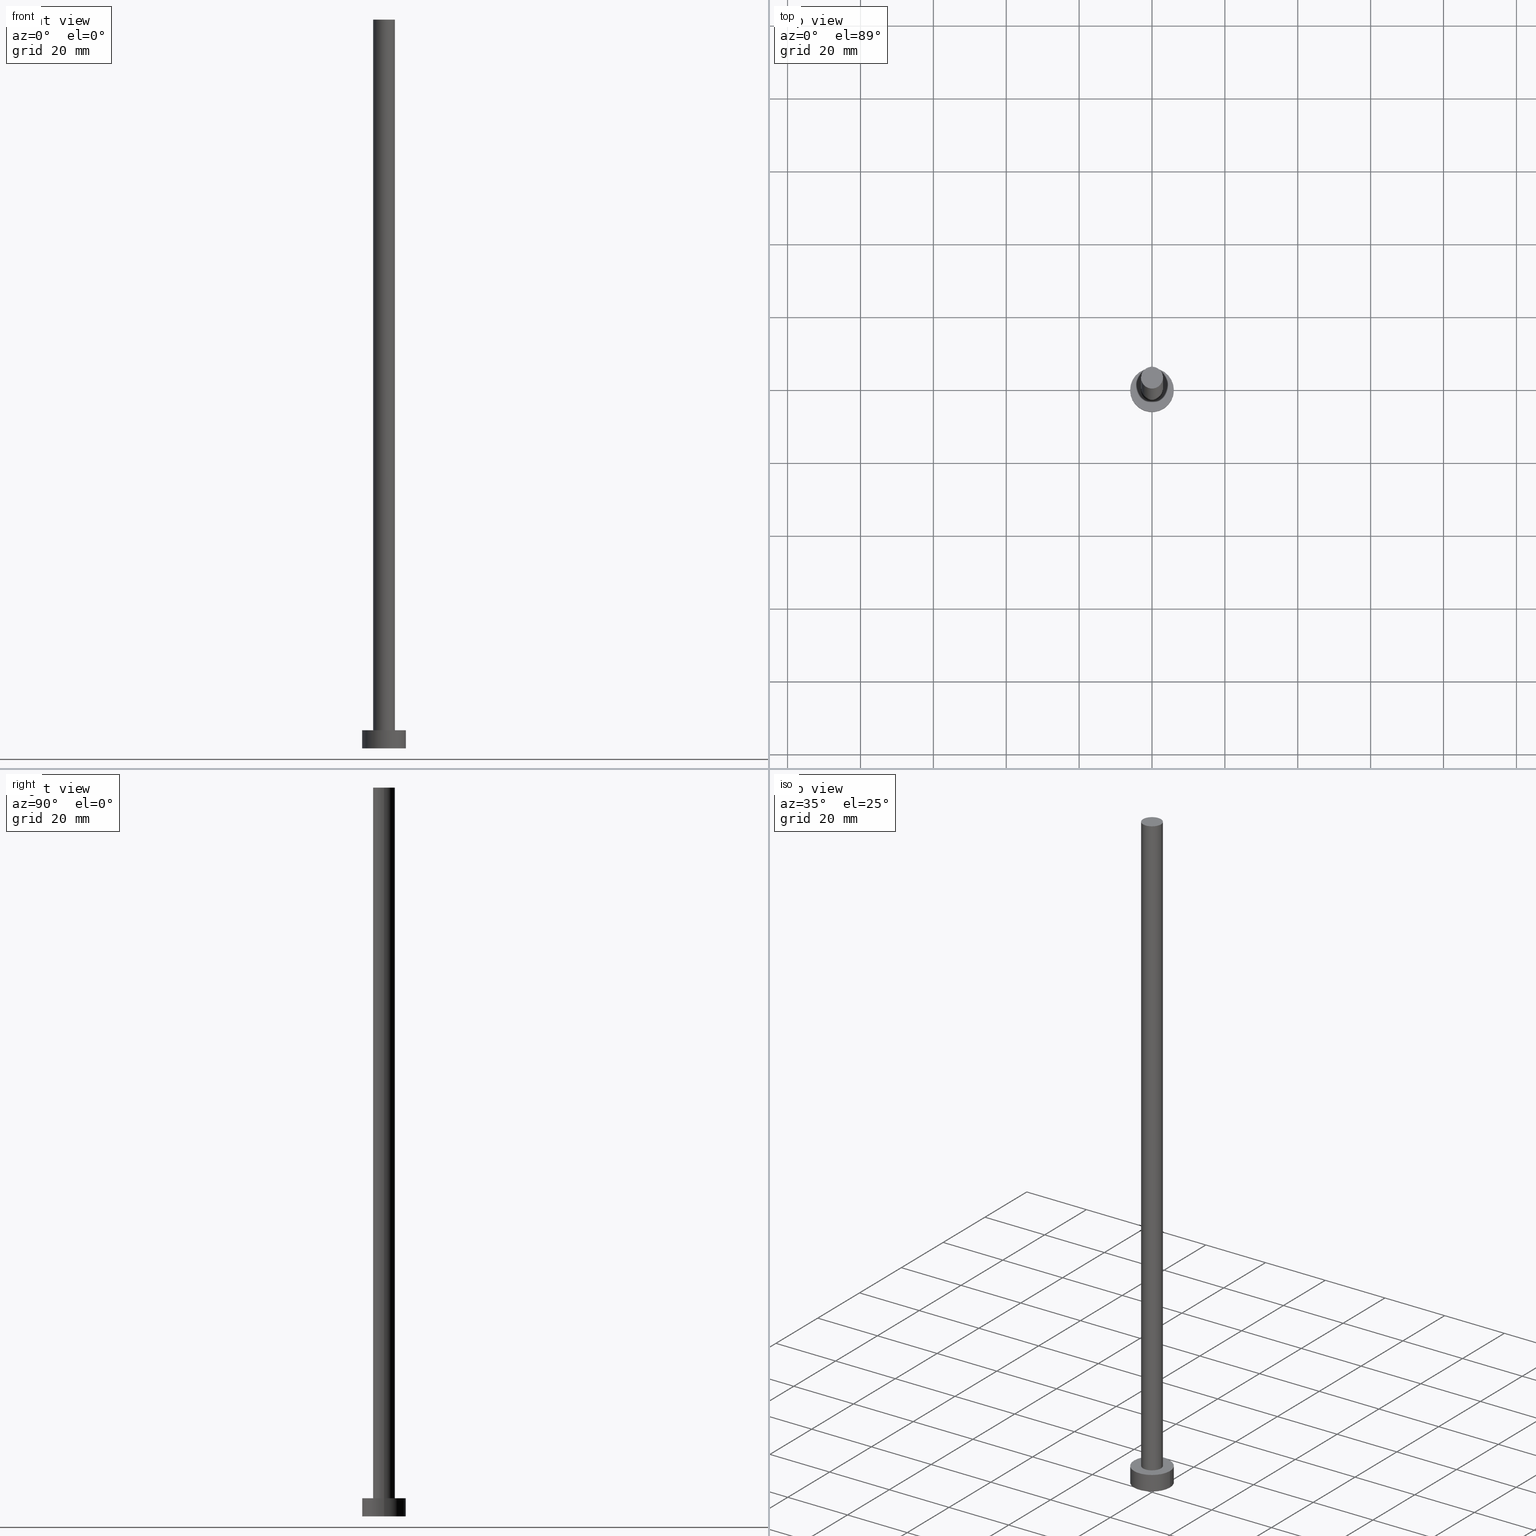
[diagram: canonical four-view strip — front | top / right | iso, engineering-drawing reading convention]
A machine part, canonical four-view strip (front | top / right | iso — engineering-drawing reading convention). The complete STEP part file that produces these views, byte-faithful:
ISO-10303-21;
HEADER;
FILE_DESCRIPTION (( 'STEP AP203' ),
    '1' );
FILE_NAME ('204b.STEP',
    '2023-02-13T14:07:28',
    ( '' ),
    ( '' ),
    'SwSTEP 2.0',
    'SolidWorks 2019',
    '' );
FILE_SCHEMA (( 'CONFIG_CONTROL_DESIGN' ));
ENDSEC;

DATA;
#1 = ORIENTED_EDGE ( 'NONE', *, *, #153, .T. ) ;
#2 = DIRECTION ( 'NONE',  ( 0.000000000000000000, 0.000000000000000000, 1.000000000000000000 ) ) ;
#3 = CIRCLE ( 'NONE', #38, 3.000000000000000444 ) ;
#4 = ORIENTED_EDGE ( 'NONE', *, *, #50, .T. ) ;
#5 = VERTEX_POINT ( 'NONE', #62 ) ;
#6 = PRODUCT_DEFINITION_SHAPE ( 'NONE', 'NONE',  #16 ) ;
#7 = ADVANCED_FACE ( 'NONE', ( #160, #67 ), #156, .T. ) ;
#8 = DIRECTION ( 'NONE',  ( -0.000000000000000000, -0.000000000000000000, -1.000000000000000000 ) ) ;
#9 = PERSON_AND_ORGANIZATION ( #74, #227 ) ;
#10 = PLANE ( 'NONE',  #178 ) ;
#11 = COORDINATED_UNIVERSAL_TIME_OFFSET ( 1, 0, .AHEAD. ) ;
#12 = EDGE_CURVE ( 'NONE', #240, #236, #63, .T. ) ;
#13 = DIRECTION ( 'NONE',  ( -0.000000000000000000, -0.000000000000000000, -1.000000000000000000 ) ) ;
#14 = DATE_AND_TIME ( #190, #109 ) ;
#15 = CARTESIAN_POINT ( 'NONE',  ( 6.000000000000000888, 7.347880794884120722E-16, 5.000000000000000000 ) ) ;
#16 = PRODUCT_DEFINITION ( 'NEZN�M�', '', #198, #174 ) ;
#17 = CALENDAR_DATE ( 2023, 13, 2 ) ;
#18 = CIRCLE ( 'NONE', #182, 3.000000000000000444 ) ;
#19 = CARTESIAN_POINT ( 'NONE',  ( -6.000000000000000888, 0.000000000000000000, 5.000000000000000000 ) ) ;
#20 = LOCAL_TIME ( 15, 7, 28.00000000000000000, #76 ) ;
#21 = CALENDAR_DATE ( 2023, 13, 2 ) ;
#22 = ADVANCED_FACE ( 'NONE', ( #123 ), #23, .T. ) ;
#23 = CYLINDRICAL_SURFACE ( 'NONE', #82, 6.000000000000000888 ) ;
#24 = EDGE_LOOP ( 'NONE', ( #241, #88 ) ) ;
#25 = ORIENTED_EDGE ( 'NONE', *, *, #195, .T. ) ;
#26 = DIRECTION ( 'NONE',  ( 1.000000000000000000, 0.000000000000000000, 0.000000000000000000 ) ) ;
#27 = CIRCLE ( 'NONE', #193, 6.000000000000000888 ) ;
#28 = FACE_OUTER_BOUND ( 'NONE', #45, .T. ) ;
#29 = AXIS2_PLACEMENT_3D ( 'NONE', #170, #116, #172 ) ;
#30 = CC_DESIGN_SECURITY_CLASSIFICATION ( #181, ( #198 ) ) ;
#31 = PERSON_AND_ORGANIZATION_ROLE ( 'design_supplier' ) ;
#32 = DIRECTION ( 'NONE',  ( 0.000000000000000000, 0.000000000000000000, 1.000000000000000000 ) ) ;
#33 = DIRECTION ( 'NONE',  ( -0.000000000000000000, -0.000000000000000000, -1.000000000000000000 ) ) ;
#34 = CIRCLE ( 'NONE', #53, 3.000000000000000444 ) ;
#35 = PERSON_AND_ORGANIZATION ( #74, #227 ) ;
#36 = PERSON_AND_ORGANIZATION_ROLE ( 'creator' ) ;
#37 = DIRECTION ( 'NONE',  ( 1.000000000000000000, 0.000000000000000000, 0.000000000000000000 ) ) ;
#38 = AXIS2_PLACEMENT_3D ( 'NONE', #187, #131, #205 ) ;
#39 = AXIS2_PLACEMENT_3D ( 'NONE', #142, #127, #202 ) ;
#40 = APPROVAL_PERSON_ORGANIZATION ( #186, #145, #147 ) ;
#41 = EDGE_CURVE ( 'NONE', #203, #177, #34, .T. ) ;
#42 = EDGE_LOOP ( 'NONE', ( #234, #216 ) ) ;
#43 = VECTOR ( 'NONE', #194, 1000.000000000000000 ) ;
#44 = APPROVAL_ROLE ( '' ) ;
#45 = EDGE_LOOP ( 'NONE', ( #139, #220, #105, #87 ) ) ;
#46 = PRODUCT_RELATED_PRODUCT_CATEGORY ( 'detail', '', ( #49 ) ) ;
#47 = AXIS2_PLACEMENT_3D ( 'NONE', #175, #89, #26 ) ;
#48 = ORIENTED_EDGE ( 'NONE', *, *, #155, .F. ) ;
#49 = PRODUCT ( '204b', '204b', '', ( #226 ) ) ;
#50 = EDGE_CURVE ( 'NONE', #154, #5, #27, .T. ) ;
#51 = DIRECTION ( 'NONE',  ( 1.000000000000000000, 0.000000000000000000, -0.000000000000000000 ) ) ;
#52 = EDGE_CURVE ( 'NONE', #161, #200, #90, .T. ) ;
#53 = AXIS2_PLACEMENT_3D ( 'NONE', #112, #130, #245 ) ;
#54 = SECURITY_CLASSIFICATION_LEVEL ( 'unclassified' ) ;
#55 = CYLINDRICAL_SURFACE ( 'NONE', #222, 3.000000000000000444 ) ;
#56 = ADVANCED_FACE ( 'NONE', ( #69 ), #55, .T. ) ;
#57 = VECTOR ( 'NONE', #137, 1000.000000000000000 ) ;
#58 = APPROVAL_DATE_TIME ( #212, #145 ) ;
#59 = CARTESIAN_POINT ( 'NONE',  ( -3.000000000000000444, 0.000000000000000000, 200.0000000000000000 ) ) ;
#60 = CC_DESIGN_PERSON_AND_ORGANIZATION_ASSIGNMENT ( #243, #36, ( #198 ) ) ;
#61 = ADVANCED_FACE ( 'NONE', ( #221 ), #165, .T. ) ;
#62 = CARTESIAN_POINT ( 'NONE',  ( -6.000000000000000888, 0.000000000000000000, 0.000000000000000000 ) ) ;
#63 = CIRCLE ( 'NONE', #47, 6.000000000000000888 ) ;
#64 = ORIENTED_EDGE ( 'NONE', *, *, #250, .T. ) ;
#65 = EDGE_LOOP ( 'NONE', ( #201, #85, #4, #48 ) ) ;
#66 = APPLICATION_CONTEXT ( 'configuration controlled 3d designs of mechanical parts and assemblies' ) ;
#67 = FACE_OUTER_BOUND ( 'NONE', #83, .T. ) ;
#68 = ORIENTED_EDGE ( 'NONE', *, *, #12, .T. ) ;
#69 = FACE_OUTER_BOUND ( 'NONE', #143, .T. ) ;
#70 = CC_DESIGN_PERSON_AND_ORGANIZATION_ASSIGNMENT ( #35, #72, ( #16 ) ) ;
#71 = DIRECTION ( 'NONE',  ( 1.000000000000000000, 0.000000000000000000, 0.000000000000000000 ) ) ;
#72 = PERSON_AND_ORGANIZATION_ROLE ( 'creator' ) ;
#73 = CARTESIAN_POINT ( 'NONE',  ( 0.000000000000000000, 0.000000000000000000, 5.000000000000000000 ) ) ;
#74 = PERSON ( 'NEUR�EN�', 'NEUR�EN�', 'NEUR�EN�', ('NEUR�EN�'), ('NEUR�EN�'), ('NEUR�EN�') ) ;
#75 = CARTESIAN_POINT ( 'NONE',  ( 0.000000000000000000, 0.000000000000000000, 0.000000000000000000 ) ) ;
#76 = COORDINATED_UNIVERSAL_TIME_OFFSET ( 1, 0, .AHEAD. ) ;
#77 = DIRECTION ( 'NONE',  ( 0.000000000000000000, 0.000000000000000000, 1.000000000000000000 ) ) ;
#78 = LINE ( 'NONE', #134, #197 ) ;
#79 = APPROVAL_PERSON_ORGANIZATION ( #9, #120, #93 ) ;
#80 = COORDINATED_UNIVERSAL_TIME_OFFSET ( 1, 0, .AHEAD. ) ;
#81 = CARTESIAN_POINT ( 'NONE',  ( -3.000000000000000444, 0.000000000000000000, 5.000000000000000000 ) ) ;
#82 = AXIS2_PLACEMENT_3D ( 'NONE', #199, #102, #108 ) ;
#83 = EDGE_LOOP ( 'NONE', ( #68, #1 ) ) ;
#84 =( NAMED_UNIT ( * ) SI_UNIT ( $, .STERADIAN. ) SOLID_ANGLE_UNIT ( ) );
#85 = ORIENTED_EDGE ( 'NONE', *, *, #224, .T. ) ;
#86 = AXIS2_PLACEMENT_3D ( 'NONE', #167, #206, #71 ) ;
#87 = ORIENTED_EDGE ( 'NONE', *, *, #250, .F. ) ;
#88 = ORIENTED_EDGE ( 'NONE', *, *, #50, .F. ) ;
#89 = DIRECTION ( 'NONE',  ( 0.000000000000000000, 0.000000000000000000, 1.000000000000000000 ) ) ;
#90 = CIRCLE ( 'NONE', #86, 3.000000000000000444 ) ;
#91 = EDGE_CURVE ( 'NONE', #177, #203, #3, .T. ) ;
#92 = CIRCLE ( 'NONE', #29, 6.000000000000000888 ) ;
#93 = APPROVAL_ROLE ( '' ) ;
#94 = APPROVAL ( #100, 'NEUR�EN�' ) ;
#95 = CARTESIAN_POINT ( 'NONE',  ( 0.000000000000000000, 0.000000000000000000, 200.0000000000000000 ) ) ;
#96 = DATE_AND_TIME ( #171, #20 ) ;
#97 = PLANE ( 'NONE',  #148 ) ;
#98 = DATE_TIME_ROLE ( 'classification_date' ) ;
#99 = ADVANCED_FACE ( 'NONE', ( #183 ), #10, .T. ) ;
#100 = APPROVAL_STATUS ( 'not_yet_approved' ) ;
#101 = CARTESIAN_POINT ( 'NONE',  ( 6.000000000000000888, 7.347880794884120722E-16, 0.000000000000000000 ) ) ;
#102 = DIRECTION ( 'NONE',  ( -0.000000000000000000, -0.000000000000000000, -1.000000000000000000 ) ) ;
#103 = CC_DESIGN_PERSON_AND_ORGANIZATION_ASSIGNMENT ( #132, #31, ( #198 ) ) ;
#104 = ADVANCED_FACE ( 'NONE', ( #28 ), #208, .T. ) ;
#105 = ORIENTED_EDGE ( 'NONE', *, *, #91, .T. ) ;
#106 = UNCERTAINTY_MEASURE_WITH_UNIT (LENGTH_MEASURE( 1.000000000000000082E-05 ), #238, 'distance_accuracy_value', 'NONE');
#107 = ORIENTED_EDGE ( 'NONE', *, *, #184, .F. ) ;
#108 = DIRECTION ( 'NONE',  ( -1.000000000000000000, 0.000000000000000000, 0.000000000000000000 ) ) ;
#109 = LOCAL_TIME ( 15, 7, 28.00000000000000000, #80 ) ;
#110 = DIRECTION ( 'NONE',  ( 0.000000000000000000, 0.000000000000000000, 1.000000000000000000 ) ) ;
#111 = DIRECTION ( 'NONE',  ( 1.000000000000000000, 0.000000000000000000, 0.000000000000000000 ) ) ;
#112 = CARTESIAN_POINT ( 'NONE',  ( 0.000000000000000000, 0.000000000000000000, 5.000000000000000000 ) ) ;
#113 = PERSON_AND_ORGANIZATION_ROLE ( 'design_owner' ) ;
#114 = DIRECTION ( 'NONE',  ( -1.000000000000000000, 0.000000000000000000, 0.000000000000000000 ) ) ;
#115 = PERSON_AND_ORGANIZATION ( #74, #227 ) ;
#116 = DIRECTION ( 'NONE',  ( 0.000000000000000000, 0.000000000000000000, 1.000000000000000000 ) ) ;
#117 = CARTESIAN_POINT ( 'NONE',  ( 3.000000000000000444, 3.673940397442060361E-16, 5.000000000000000000 ) ) ;
#118 = APPROVAL_STATUS ( 'not_yet_approved' ) ;
#119 = LINE ( 'NONE', #196, #43 ) ;
#120 = APPROVAL ( #118, 'NEUR�EN�' ) ;
#121 =( NAMED_UNIT ( * ) PLANE_ANGLE_UNIT ( ) SI_UNIT ( $, .RADIAN. ) );
#122 = APPROVAL_PERSON_ORGANIZATION ( #169, #94, #44 ) ;
#123 = FACE_OUTER_BOUND ( 'NONE', #159, .T. ) ;
#124 = CARTESIAN_POINT ( 'NONE',  ( 0.000000000000000000, 0.000000000000000000, 200.0000000000000000 ) ) ;
#125 = EDGE_LOOP ( 'NONE', ( #180, #126 ) ) ;
#126 = ORIENTED_EDGE ( 'NONE', *, *, #91, .F. ) ;
#127 = DIRECTION ( 'NONE',  ( 0.000000000000000000, 0.000000000000000000, 1.000000000000000000 ) ) ;
#128 = MANIFOLD_SOLID_BREP ( 'P�idat vysunut�m3', #157 ) ;
#129 = LOCAL_TIME ( 15, 7, 28.00000000000000000, #251 ) ;
#130 = DIRECTION ( 'NONE',  ( 0.000000000000000000, 0.000000000000000000, 1.000000000000000000 ) ) ;
#131 = DIRECTION ( 'NONE',  ( 0.000000000000000000, 0.000000000000000000, 1.000000000000000000 ) ) ;
#132 = PERSON_AND_ORGANIZATION ( #74, #227 ) ;
#133 = AXIS2_PLACEMENT_3D ( 'NONE', #210, #32, #111 ) ;
#134 = CARTESIAN_POINT ( 'NONE',  ( 3.000000000000000444, 3.673940397442060361E-16, 200.0000000000000000 ) ) ;
#135 = PERSON_AND_ORGANIZATION ( #74, #227 ) ;
#136 = CARTESIAN_POINT ( 'NONE',  ( 6.000000000000000888, 7.347880794884120722E-16, 5.000000000000000000 ) ) ;
#137 = DIRECTION ( 'NONE',  ( -0.000000000000000000, -0.000000000000000000, -1.000000000000000000 ) ) ;
#138 = AXIS2_PLACEMENT_3D ( 'NONE', #73, #33, #114 ) ;
#139 = ORIENTED_EDGE ( 'NONE', *, *, #247, .F. ) ;
#140 = CC_DESIGN_APPROVAL ( #94, ( #181 ) ) ;
#141 = ORIENTED_EDGE ( 'NONE', *, *, #12, .F. ) ;
#142 = CARTESIAN_POINT ( 'NONE',  ( 0.000000000000000000, 0.000000000000000000, 5.000000000000000000 ) ) ;
#143 = EDGE_LOOP ( 'NONE', ( #107, #179, #64, #255 ) ) ;
#144 = CARTESIAN_POINT ( 'NONE',  ( 0.000000000000000000, 0.000000000000000000, 200.0000000000000000 ) ) ;
#145 = APPROVAL ( #244, 'NEUR�EN�' ) ;
#146 = DIRECTION ( 'NONE',  ( 1.000000000000000000, 0.000000000000000000, 0.000000000000000000 ) ) ;
#147 = APPROVAL_ROLE ( '' ) ;
#148 = AXIS2_PLACEMENT_3D ( 'NONE', #149, #253, #252 ) ;
#149 = CARTESIAN_POINT ( 'NONE',  ( 0.000000000000000000, 0.000000000000000000, 0.000000000000000000 ) ) ;
#150 = CC_DESIGN_PERSON_AND_ORGANIZATION_ASSIGNMENT ( #135, #113, ( #49 ) ) ;
#151 = ADVANCED_BREP_SHAPE_REPRESENTATION ( '204b', ( #128, #133 ), #217 ) ;
#152 = DIRECTION ( 'NONE',  ( 0.000000000000000000, 0.000000000000000000, 1.000000000000000000 ) ) ;
#153 = EDGE_CURVE ( 'NONE', #236, #240, #92, .T. ) ;
#154 = VERTEX_POINT ( 'NONE', #101 ) ;
#155 = EDGE_CURVE ( 'NONE', #240, #5, #246, .T. ) ;
#156 = PLANE ( 'NONE',  #39 ) ;
#157 = CLOSED_SHELL ( 'NONE', ( #104, #61, #22, #7, #163, #56, #99 ) ) ;
#158 = FACE_OUTER_BOUND ( 'NONE', #24, .T. ) ;
#159 = EDGE_LOOP ( 'NONE', ( #218, #141, #239, #25 ) ) ;
#160 = FACE_BOUND ( 'NONE', #125, .T. ) ;
#161 = VERTEX_POINT ( 'NONE', #59 ) ;
#162 = AXIS2_PLACEMENT_3D ( 'NONE', #211, #152, #248 ) ;
#163 = ADVANCED_FACE ( 'NONE', ( #158 ), #97, .F. ) ;
#164 = APPLICATION_PROTOCOL_DEFINITION ( 'international standard', 'config_control_design', 1994, #66 ) ;
#165 = CYLINDRICAL_SURFACE ( 'NONE', #138, 6.000000000000000888 ) ;
#166 = DATE_TIME_ROLE ( 'creation_date' ) ;
#167 = CARTESIAN_POINT ( 'NONE',  ( 0.000000000000000000, 0.000000000000000000, 200.0000000000000000 ) ) ;
#168 = DATE_AND_TIME ( #17, #229 ) ;
#169 = PERSON_AND_ORGANIZATION ( #74, #227 ) ;
#170 = CARTESIAN_POINT ( 'NONE',  ( 0.000000000000000000, 0.000000000000000000, 5.000000000000000000 ) ) ;
#171 = CALENDAR_DATE ( 2023, 13, 2 ) ;
#172 = DIRECTION ( 'NONE',  ( 1.000000000000000000, 0.000000000000000000, 0.000000000000000000 ) ) ;
#173 = APPROVAL_DATE_TIME ( #254, #94 ) ;
#174 = DESIGN_CONTEXT ( 'detailed design', #232, 'design' ) ;
#175 = CARTESIAN_POINT ( 'NONE',  ( 0.000000000000000000, 0.000000000000000000, 5.000000000000000000 ) ) ;
#176 = DIRECTION ( 'NONE',  ( -0.000000000000000000, -0.000000000000000000, -1.000000000000000000 ) ) ;
#177 = VERTEX_POINT ( 'NONE', #117 ) ;
#178 = AXIS2_PLACEMENT_3D ( 'NONE', #95, #77, #51 ) ;
#179 = ORIENTED_EDGE ( 'NONE', *, *, #52, .F. ) ;
#180 = ORIENTED_EDGE ( 'NONE', *, *, #41, .F. ) ;
#181 = SECURITY_CLASSIFICATION ( '', '', #54 ) ;
#182 = AXIS2_PLACEMENT_3D ( 'NONE', #124, #2, #37 ) ;
#183 = FACE_OUTER_BOUND ( 'NONE', #42, .T. ) ;
#184 = EDGE_CURVE ( 'NONE', #200, #177, #78, .T. ) ;
#185 = DIRECTION ( 'NONE',  ( -1.000000000000000000, 0.000000000000000000, 0.000000000000000000 ) ) ;
#186 = PERSON_AND_ORGANIZATION ( #74, #227 ) ;
#187 = CARTESIAN_POINT ( 'NONE',  ( 0.000000000000000000, 0.000000000000000000, 5.000000000000000000 ) ) ;
#188 = PERSON_AND_ORGANIZATION_ROLE ( 'classification_officer' ) ;
#189 = CARTESIAN_POINT ( 'NONE',  ( -6.000000000000000888, 0.000000000000000000, 5.000000000000000000 ) ) ;
#190 = CALENDAR_DATE ( 2023, 13, 2 ) ;
#191 = LINE ( 'NONE', #136, #57 ) ;
#192 = COORDINATED_UNIVERSAL_TIME_OFFSET ( 1, 0, .AHEAD. ) ;
#193 = AXIS2_PLACEMENT_3D ( 'NONE', #75, #110, #146 ) ;
#194 = DIRECTION ( 'NONE',  ( -0.000000000000000000, -0.000000000000000000, -1.000000000000000000 ) ) ;
#195 = EDGE_CURVE ( 'NONE', #5, #154, #242, .T. ) ;
#196 = CARTESIAN_POINT ( 'NONE',  ( -3.000000000000000444, 0.000000000000000000, 200.0000000000000000 ) ) ;
#197 = VECTOR ( 'NONE', #213, 1000.000000000000000 ) ;
#198 = PRODUCT_DEFINITION_FORMATION_WITH_SPECIFIED_SOURCE ( 'LIBOVOLN�', '', #49, .NOT_KNOWN. ) ;
#199 = CARTESIAN_POINT ( 'NONE',  ( 0.000000000000000000, 0.000000000000000000, 5.000000000000000000 ) ) ;
#200 = VERTEX_POINT ( 'NONE', #214 ) ;
#201 = ORIENTED_EDGE ( 'NONE', *, *, #153, .F. ) ;
#202 = DIRECTION ( 'NONE',  ( 1.000000000000000000, 0.000000000000000000, -0.000000000000000000 ) ) ;
#203 = VERTEX_POINT ( 'NONE', #81 ) ;
#204 = VECTOR ( 'NONE', #13, 1000.000000000000000 ) ;
#205 = DIRECTION ( 'NONE',  ( 1.000000000000000000, 0.000000000000000000, 0.000000000000000000 ) ) ;
#206 = DIRECTION ( 'NONE',  ( 0.000000000000000000, 0.000000000000000000, 1.000000000000000000 ) ) ;
#207 = APPLICATION_PROTOCOL_DEFINITION ( 'international standard', 'config_control_design', 1994, #232 ) ;
#208 = CYLINDRICAL_SURFACE ( 'NONE', #209, 3.000000000000000444 ) ;
#209 = AXIS2_PLACEMENT_3D ( 'NONE', #231, #176, #228 ) ;
#210 = CARTESIAN_POINT ( 'NONE',  ( 0.000000000000000000, 0.000000000000000000, 0.000000000000000000 ) ) ;
#211 = CARTESIAN_POINT ( 'NONE',  ( 0.000000000000000000, 0.000000000000000000, 0.000000000000000000 ) ) ;
#212 = DATE_AND_TIME ( #225, #249 ) ;
#213 = DIRECTION ( 'NONE',  ( -0.000000000000000000, -0.000000000000000000, -1.000000000000000000 ) ) ;
#214 = CARTESIAN_POINT ( 'NONE',  ( 3.000000000000000444, 3.673940397442060361E-16, 200.0000000000000000 ) ) ;
#215 = CC_DESIGN_DATE_AND_TIME_ASSIGNMENT ( #168, #98, ( #181 ) ) ;
#216 = ORIENTED_EDGE ( 'NONE', *, *, #247, .T. ) ;
#217 =( GEOMETRIC_REPRESENTATION_CONTEXT ( 3 ) GLOBAL_UNCERTAINTY_ASSIGNED_CONTEXT ( ( #106 ) ) GLOBAL_UNIT_ASSIGNED_CONTEXT ( ( #238, #121, #84 ) ) REPRESENTATION_CONTEXT ( 'NONE', 'WORKASPACE' ) );
#218 = ORIENTED_EDGE ( 'NONE', *, *, #224, .F. ) ;
#219 = CC_DESIGN_APPROVAL ( #120, ( #16 ) ) ;
#220 = ORIENTED_EDGE ( 'NONE', *, *, #184, .T. ) ;
#221 = FACE_OUTER_BOUND ( 'NONE', #65, .T. ) ;
#222 = AXIS2_PLACEMENT_3D ( 'NONE', #144, #8, #185 ) ;
#223 = CC_DESIGN_PERSON_AND_ORGANIZATION_ASSIGNMENT ( #115, #188, ( #181 ) ) ;
#224 = EDGE_CURVE ( 'NONE', #236, #154, #191, .T. ) ;
#225 = CALENDAR_DATE ( 2023, 13, 2 ) ;
#226 = MECHANICAL_CONTEXT ( 'NONE', #66, 'mechanical' ) ;
#227 = ORGANIZATION ( 'NEUR�EN�', 'NEUR�EN�', '' ) ;
#228 = DIRECTION ( 'NONE',  ( -1.000000000000000000, 0.000000000000000000, 0.000000000000000000 ) ) ;
#229 = LOCAL_TIME ( 15, 7, 28.00000000000000000, #11 ) ;
#230 = APPROVAL_DATE_TIME ( #96, #120 ) ;
#231 = CARTESIAN_POINT ( 'NONE',  ( 0.000000000000000000, 0.000000000000000000, 200.0000000000000000 ) ) ;
#232 = APPLICATION_CONTEXT ( 'configuration controlled 3d designs of mechanical parts and assemblies' ) ;
#233 = SHAPE_DEFINITION_REPRESENTATION ( #6, #151 ) ;
#234 = ORIENTED_EDGE ( 'NONE', *, *, #52, .T. ) ;
#235 = CC_DESIGN_APPROVAL ( #145, ( #198 ) ) ;
#236 = VERTEX_POINT ( 'NONE', #15 ) ;
#237 = CC_DESIGN_DATE_AND_TIME_ASSIGNMENT ( #14, #166, ( #16 ) ) ;
#238 =( LENGTH_UNIT ( ) NAMED_UNIT ( * ) SI_UNIT ( .MILLI., .METRE. ) );
#239 = ORIENTED_EDGE ( 'NONE', *, *, #155, .T. ) ;
#240 = VERTEX_POINT ( 'NONE', #19 ) ;
#241 = ORIENTED_EDGE ( 'NONE', *, *, #195, .F. ) ;
#242 = CIRCLE ( 'NONE', #162, 6.000000000000000888 ) ;
#243 = PERSON_AND_ORGANIZATION ( #74, #227 ) ;
#244 = APPROVAL_STATUS ( 'not_yet_approved' ) ;
#245 = DIRECTION ( 'NONE',  ( 1.000000000000000000, 0.000000000000000000, 0.000000000000000000 ) ) ;
#246 = LINE ( 'NONE', #189, #204 ) ;
#247 = EDGE_CURVE ( 'NONE', #200, #161, #18, .T. ) ;
#248 = DIRECTION ( 'NONE',  ( 1.000000000000000000, 0.000000000000000000, 0.000000000000000000 ) ) ;
#249 = LOCAL_TIME ( 15, 7, 28.00000000000000000, #192 ) ;
#250 = EDGE_CURVE ( 'NONE', #161, #203, #119, .T. ) ;
#251 = COORDINATED_UNIVERSAL_TIME_OFFSET ( 1, 0, .AHEAD. ) ;
#252 = DIRECTION ( 'NONE',  ( 1.000000000000000000, 0.000000000000000000, -0.000000000000000000 ) ) ;
#253 = DIRECTION ( 'NONE',  ( 0.000000000000000000, 0.000000000000000000, 1.000000000000000000 ) ) ;
#254 = DATE_AND_TIME ( #21, #129 ) ;
#255 = ORIENTED_EDGE ( 'NONE', *, *, #41, .T. ) ;
ENDSEC;
END-ISO-10303-21;
